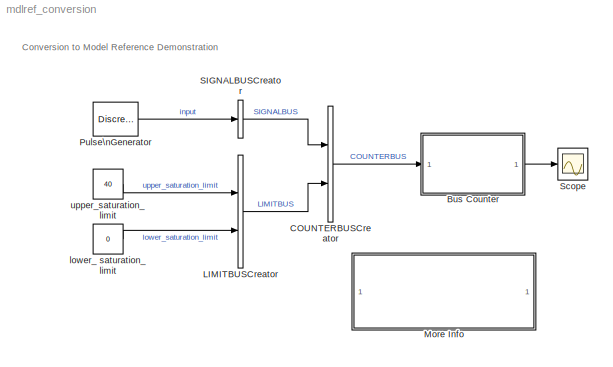
MODEL mdlref_conversion
KIND model
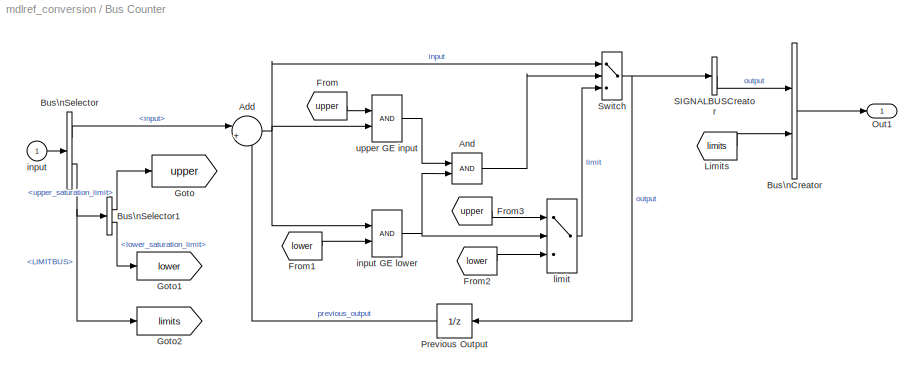
BLOCK [SubSystem] Bus Counter
  MinAlgLoopOccurrences = off
  Ports = [1, 1]
  PropExecContextAcrossSSBoundary = on
  RTWSystemCode = Auto
  TreatAsAtomicUnit = on
BLOCK [Inport] Bus Counter/ input
  IconDisplay = Port number
  LatchInput = off
  Port = 1
BLOCK [RelationalOperator] Bus Counter/ input GE lower
  AttributesFormatString = \\n
  Priority = 1
BLOCK [Switch] Bus Counter/ limit
  Threshold = 0.5
BLOCK [Sum] Bus Counter/Add
  IconShape = round
  InputSameDT = off
  Inputs = |++
  OutDataTypeMode = Inherit via internal rule
  OutScaling = 2^-10
  Ports = [2, 1]
  SaturateOnIntegerOverflow = off
BLOCK [Logic] Bus Counter/And
  Ports = [2, 1]
BLOCK [BusCreator] Bus Counter/Bus\nCreator
  DialogController = Simulink.DDGSource_Bus
  DisplayOption = bar
  Inputs = 2
  Ports = [2, 1]
BLOCK [BusSelector] Bus Counter/Bus\nSelector
  DialogController = Simulink.DDGSource_Bus
  OutputSignals = SIGNALBUS.input,LIMITBUS
  Ports = [1, 2]
BLOCK [BusSelector] Bus Counter/Bus\nSelector1
  DialogController = Simulink.DDGSource_Bus
  OutputSignals = upper_saturation_limit,lower_saturation_limit
  Ports = [1, 2]
BLOCK [From] Bus Counter/From
  DialogController = Simulink.DDGSource
  GotoTag = upper
BLOCK [From] Bus Counter/From1
  DialogController = Simulink.DDGSource
  GotoTag = lower
BLOCK [From] Bus Counter/From2
  DialogController = Simulink.DDGSource
  GotoTag = lower
BLOCK [From] Bus Counter/From3
  DialogController = Simulink.DDGSource
  GotoTag = upper
BLOCK [Goto] Bus Counter/Goto
  DialogController = Simulink.DDGSource
  GotoTag = upper
  TagVisibility = local
BLOCK [Goto] Bus Counter/Goto1
  DialogController = Simulink.DDGSource
  GotoTag = lower
  TagVisibility = local
BLOCK [Goto] Bus Counter/Goto2
  DialogController = Simulink.DDGSource
  GotoTag = limits
  TagVisibility = local
BLOCK [From] Bus Counter/Limits
  DialogController = Simulink.DDGSource
  GotoTag = limits
BLOCK [Outport] Bus Counter/Out1
  BusOutputAsStruct = off
  IconDisplay = Port number
BLOCK [UnitDelay] Bus Counter/Previous Output
  SampleTime = -1
BLOCK [BusCreator] Bus Counter/SIGNALBUSCreator
  DialogController = Simulink.DDGSource_Bus
  DisplayOption = bar
  Inputs = 1
  Ports = [1, 1]
BLOCK [Switch] Bus Counter/Switch
  Threshold = 0.5
BLOCK [RelationalOperator] Bus Counter/upper GE input
  AttributesFormatString = \\n
  Priority = 0
BLOCK [BusCreator] COUNTERBUSCreator
  DialogController = Simulink.DDGSource_Bus
  DisplayOption = bar
  Inputs = 2
  Ports = [2, 1]
BLOCK [BusCreator] LIMITBUSCreator
  DialogController = Simulink.DDGSource_Bus
  DisplayOption = bar
  Inputs = 2
  Ports = [2, 1]
BLOCK [SubSystem] More Info
  MaskDisplay = disp('Double click here \\nfor a step-by-step\\ntutorial on this model')
  MaskIconFrame = on
  MaskIconOpaque = on
  MaskIconRotate = none
  MaskIconUnits = autoscale
  MinAlgLoopOccurrences = off
  OpenFcn = mdlref_conversionscript
  Ports = []
  PropExecContextAcrossSSBoundary = on
  RTWSystemCode = Auto
  TreatAsAtomicUnit = off
BLOCK [DiscretePulseGenerator] Pulse\nGenerator
  Amplitude = int32(1)
  Ports = [0, 1]
  SampleTime = 0.1
BLOCK [BusCreator] SIGNALBUSCreator
  DialogController = Simulink.DDGSource_Bus
  DisplayOption = bar
  Inputs = 1
  Ports = [1, 1]
BLOCK [Scope] Scope
  DataFormat = Array
  NumInputPorts = 1
  Ports = [1]
  SaveName = ScopeData1
  SaveToWorkspace = on
  TimeRange = 30
  YMax = 50
  ZoomMode = yonly
BLOCK [Constant] lower_ saturation_ limit
  OutDataTypeMode = int32
  SampleTime = 0.1
  Value = 0
BLOCK [Constant] upper_saturation_limit
  OutDataTypeMode = int32
  SampleTime = 0.1
  Value = 40
ANNOTATION (root): Conversion to Model Reference Demonstration
ANNOTATION More Info: Bus Block Demonstration
ANNOTATION More Info: This demonstration shows how signals may be grouped and ungrouped while\nretaining their names. In this demonstration, 5 signals are created and labelled\nappropriately. These signals are then mux'd together to create a bus of signals.\nThis bus of signals is then fed into the Bus Selector block. Inside of the Bus \nSelector block, the Pulse and Chirp signals are chosen to be output from the \nori...<+125ch>
NET Bus Counter/ input GE lower:1 -> Bus Counter/ limit:2, Bus Counter/And:2
LINE Bus Counter/ input:1 -> Bus Counter/Bus\nSelector:1
LINE Bus Counter/ limit:1 -> Bus Counter/Switch:3
NET Bus Counter/Add:1 -> Bus Counter/ input GE lower:1, Bus Counter/Switch:1, Bus Counter/upper GE input:2
LINE Bus Counter/And:1 -> Bus Counter/Switch:2
LINE Bus Counter/Bus\nCreator:1 -> Bus Counter/Out1:1
LINE Bus Counter/Bus\nSelector1:1 -> Bus Counter/Goto:1
LINE Bus Counter/Bus\nSelector1:2 -> Bus Counter/Goto1:1
LINE Bus Counter/Bus\nSelector:1 -> Bus Counter/Add:1
NET Bus Counter/Bus\nSelector:2 -> Bus Counter/Bus\nSelector1:1, Bus Counter/Goto2:1
LINE Bus Counter/From1:1 -> Bus Counter/ input GE lower:2
LINE Bus Counter/From2:1 -> Bus Counter/ limit:3
LINE Bus Counter/From3:1 -> Bus Counter/ limit:1
LINE Bus Counter/From:1 -> Bus Counter/upper GE input:1
LINE Bus Counter/Limits:1 -> Bus Counter/Bus\nCreator:2
LINE Bus Counter/Previous Output:1 -> Bus Counter/Add:2
LINE Bus Counter/SIGNALBUSCreator:1 -> Bus Counter/Bus\nCreator:1
NET Bus Counter/Switch:1 -> Bus Counter/Previous Output:1, Bus Counter/SIGNALBUSCreator:1
LINE Bus Counter/upper GE input:1 -> Bus Counter/And:1
LINE Bus Counter:1 -> Scope:1
LINE COUNTERBUSCreator:1 -> Bus Counter:1
LINE LIMITBUSCreator:1 -> COUNTERBUSCreator:2
LINE Pulse\nGenerator:1 -> SIGNALBUSCreator:1
LINE SIGNALBUSCreator:1 -> COUNTERBUSCreator:1
LINE lower_ saturation_ limit:1 -> LIMITBUSCreator:2
LINE upper_saturation_limit:1 -> LIMITBUSCreator:1
note: NET lines group one-source signal fan-out (src -> all destinations, sorted); 1:1 wires keep LINE
